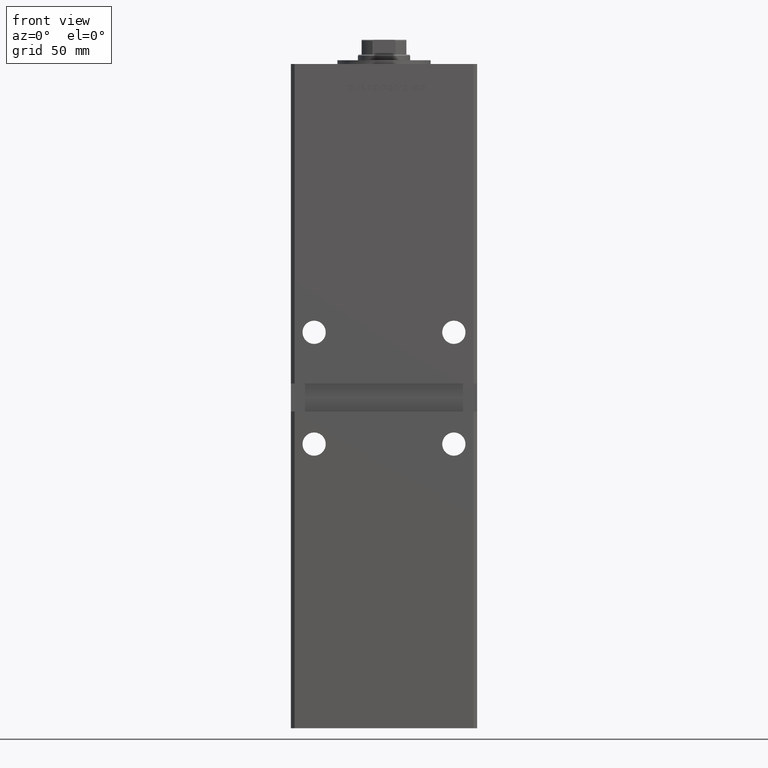
[diagram: clean part render]
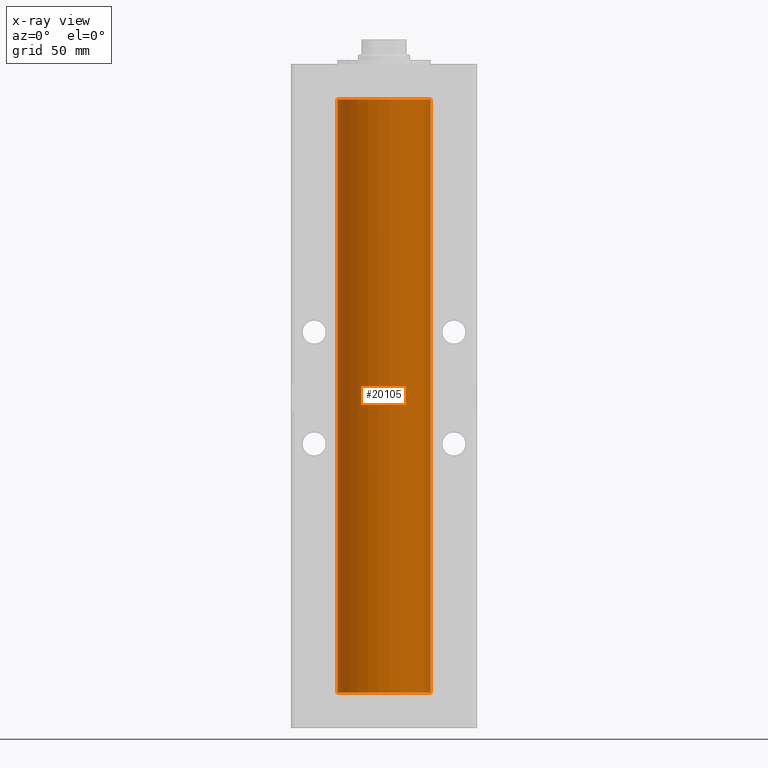
[diagram: x-ray — body ghosted, one internal face saturated and labeled with its STEP entity id]
A machine part, front view, then the same camera in x-ray: the body is ghosted and one INTERNAL B-rep face — a face not visible from any outside direction — is saturated and labeled: STEP entity #20105.
In plain terms, the highlighted cylindrical surface (partial cylindrical patch) has radius 25 mm, axis along (-0, -0, -1).
Its self-contained STEP definition (entity closure, byte-faithful):
#850 = CIRCLE ( 'NONE', #30869, 25.00000000000000000 ) ;
#1348 = ORIENTED_EDGE ( 'NONE', *, *, #13579, .F. ) ;
#4546 = FACE_OUTER_BOUND ( 'NONE', #46474, .T. ) ;
#8202 = CARTESIAN_POINT ( 'NONE',  ( -25.00000000000000000, 0.000000000000000000, 318.5000000000000000 ) ) ;
#8602 = DIRECTION ( 'NONE',  ( -0.000000000000000000, 0.000000000000000000, 1.000000000000000000 ) ) ;
#10211 = VERTEX_POINT ( 'NONE', #33031 ) ;
#10218 = EDGE_CURVE ( 'NONE', #24478, #42397, #49446, .T. ) ;
#12339 = CARTESIAN_POINT ( 'NONE',  ( 0.000000000000000000, 0.000000000000000000, 318.5000000000000000 ) ) ;
#13579 = EDGE_CURVE ( 'NONE', #36615, #10211, #14751, .T. ) ;
#13969 = CARTESIAN_POINT ( 'NONE',  ( -25.00000000000000000, 0.000000000000000000, 318.5000000000000000 ) ) ;
#14091 = AXIS2_PLACEMENT_3D ( 'NONE', #12339, #45634, #49942 ) ;
#14751 = LINE ( 'NONE', #13969, #46493 ) ;
#15523 = ORIENTED_EDGE ( 'NONE', *, *, #42532, .T. ) ;
#20105 = ADVANCED_FACE ( 'NONE', ( #4546 ), #37304, .F. ) ;
#20959 = DIRECTION ( 'NONE',  ( -0.000000000000000000, -0.000000000000000000, -1.000000000000000000 ) ) ;
#22672 = DIRECTION ( 'NONE',  ( 1.000000000000000000, 0.000000000000000000, 0.000000000000000000 ) ) ;
#24446 = CARTESIAN_POINT ( 'NONE',  ( 25.00000000000000000, 3.061616997868383043E-15, 318.5000000000000000 ) ) ;
#24478 = VERTEX_POINT ( 'NONE', #26711 ) ;
#26711 = CARTESIAN_POINT ( 'NONE',  ( 25.00000000000000000, 3.061616997868383043E-15, 318.5000000000000000 ) ) ;
#27153 = ORIENTED_EDGE ( 'NONE', *, *, #47009, .F. ) ;
#29315 = VECTOR ( 'NONE', #20959, 1000.000000000000000 ) ;
#30330 = DIRECTION ( 'NONE',  ( -0.000000000000000000, -0.000000000000000000, -1.000000000000000000 ) ) ;
#30345 = CARTESIAN_POINT ( 'NONE',  ( 25.00000000000000000, 3.061616997868383043E-15, 0.000000000000000000 ) ) ;
#30744 = DIRECTION ( 'NONE',  ( -0.000000000000000000, 0.000000000000000000, 1.000000000000000000 ) ) ;
#30869 = AXIS2_PLACEMENT_3D ( 'NONE', #31258, #30744, #22672 ) ;
#31258 = CARTESIAN_POINT ( 'NONE',  ( 0.000000000000000000, 0.000000000000000000, 318.5000000000000000 ) ) ;
#33031 = CARTESIAN_POINT ( 'NONE',  ( -25.00000000000000000, 0.000000000000000000, 0.000000000000000000 ) ) ;
#34069 = AXIS2_PLACEMENT_3D ( 'NONE', #42411, #8602, #34089 ) ;
#34089 = DIRECTION ( 'NONE',  ( 1.000000000000000000, 0.000000000000000000, 0.000000000000000000 ) ) ;
#36615 = VERTEX_POINT ( 'NONE', #8202 ) ;
#37304 = CYLINDRICAL_SURFACE ( 'NONE', #14091, 25.00000000000000000 ) ;
#42397 = VERTEX_POINT ( 'NONE', #30345 ) ;
#42411 = CARTESIAN_POINT ( 'NONE',  ( 0.000000000000000000, 0.000000000000000000, 0.000000000000000000 ) ) ;
#42532 = EDGE_CURVE ( 'NONE', #36615, #24478, #850, .T. ) ;
#45634 = DIRECTION ( 'NONE',  ( -0.000000000000000000, -0.000000000000000000, -1.000000000000000000 ) ) ;
#45986 = ORIENTED_EDGE ( 'NONE', *, *, #10218, .T. ) ;
#46474 = EDGE_LOOP ( 'NONE', ( #15523, #45986, #27153, #1348 ) ) ;
#46493 = VECTOR ( 'NONE', #30330, 1000.000000000000000 ) ;
#47009 = EDGE_CURVE ( 'NONE', #10211, #42397, #47802, .T. ) ;
#47802 = CIRCLE ( 'NONE', #34069, 25.00000000000000000 ) ;
#49446 = LINE ( 'NONE', #24446, #29315 ) ;
#49942 = DIRECTION ( 'NONE',  ( -1.000000000000000000, 0.000000000000000000, 0.000000000000000000 ) ) ;